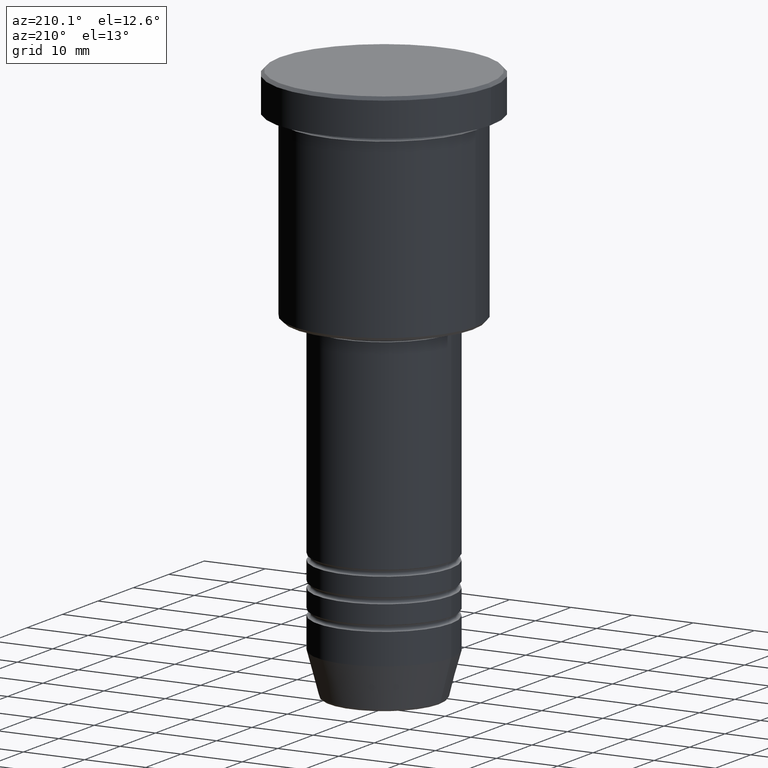
[diagram: clean part render]
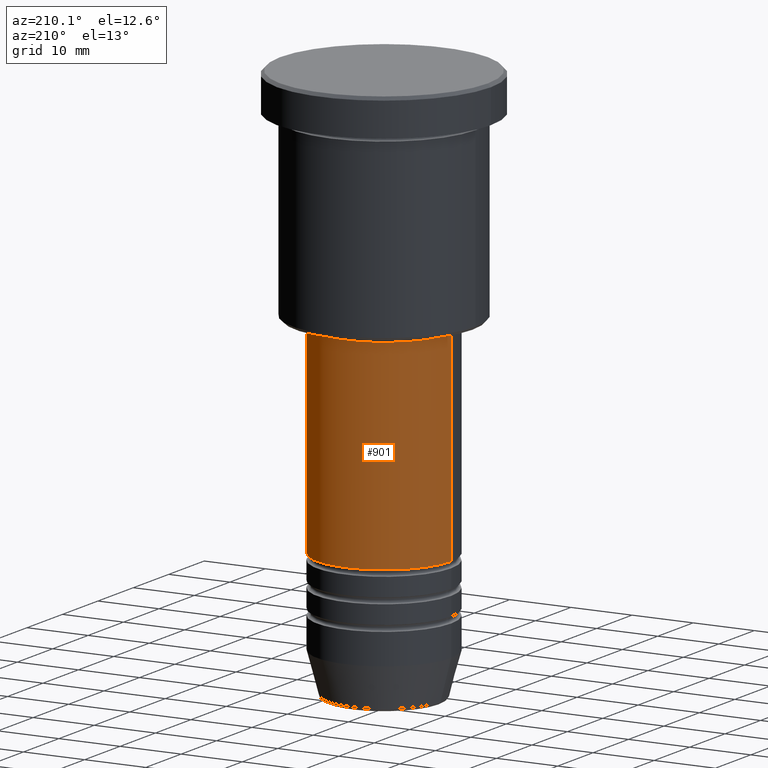
[diagram: same view with one face highlighted and labeled with its STEP entity id]
A machine part, auxiliary view. The second image highlights one B-rep face of the part: STEP entity #901.
In plain terms, the highlighted cylindrical surface (partial cylindrical patch) has radius 11 mm, axis along (-0, -0, 1).
Its self-contained STEP definition (entity closure, byte-faithful):
#2 = CYLINDRICAL_SURFACE ( 'NONE', #328, 11.00000000000000000 ) ;
#18 = DIRECTION ( 'NONE',  ( -0.000000000000000000, -0.000000000000000000, 1.000000000000000000 ) ) ;
#33 = EDGE_CURVE ( 'NONE', #864, #902, #716, .T. ) ;
#69 = EDGE_LOOP ( 'NONE', ( #1068, #868, #717, #920 ) ) ;
#93 = CIRCLE ( 'NONE', #1009, 11.00000000000000000 ) ;
#108 = CARTESIAN_POINT ( 'NONE',  ( 11.00000000000000000, 0.000000000000000000, -37.00000000000000000 ) ) ;
#159 = DIRECTION ( 'NONE',  ( -0.000000000000000000, -0.000000000000000000, 1.000000000000000000 ) ) ;
#192 = EDGE_CURVE ( 'NONE', #993, #902, #93, .T. ) ;
#328 = AXIS2_PLACEMENT_3D ( 'NONE', #432, #538, #795 ) ;
#432 = CARTESIAN_POINT ( 'NONE',  ( 0.000000000000000000, 0.000000000000000000, 0.000000000000000000 ) ) ;
#473 = LINE ( 'NONE', #842, #995 ) ;
#483 = DIRECTION ( 'NONE',  ( -0.000000000000000000, -0.000000000000000000, 1.000000000000000000 ) ) ;
#538 = DIRECTION ( 'NONE',  ( -0.000000000000000000, -0.000000000000000000, 1.000000000000000000 ) ) ;
#568 = EDGE_CURVE ( 'NONE', #702, #864, #975, .T. ) ;
#638 = CARTESIAN_POINT ( 'NONE',  ( -11.00000000000000000, 1.347111479062088405E-15, -69.99999999999988631 ) ) ;
#662 = DIRECTION ( 'NONE',  ( 1.000000000000000000, 0.000000000000000000, 0.000000000000000000 ) ) ;
#702 = VERTEX_POINT ( 'NONE', #1045 ) ;
#716 = LINE ( 'NONE', #1173, #1052 ) ;
#717 = ORIENTED_EDGE ( 'NONE', *, *, #192, .F. ) ;
#795 = DIRECTION ( 'NONE',  ( 1.000000000000000000, 0.000000000000000000, 0.000000000000000000 ) ) ;
#815 = FACE_OUTER_BOUND ( 'NONE', #69, .T. ) ;
#816 = AXIS2_PLACEMENT_3D ( 'NONE', #1019, #483, #662 ) ;
#830 = DIRECTION ( 'NONE',  ( 1.000000000000000000, 0.000000000000000000, 0.000000000000000000 ) ) ;
#842 = CARTESIAN_POINT ( 'NONE',  ( 11.00000000000000000, 0.000000000000000000, 0.000000000000000000 ) ) ;
#864 = VERTEX_POINT ( 'NONE', #638 ) ;
#868 = ORIENTED_EDGE ( 'NONE', *, *, #33, .T. ) ;
#901 = ADVANCED_FACE ( 'NONE', ( #815 ), #2, .T. ) ;
#902 = VERTEX_POINT ( 'NONE', #1164 ) ;
#920 = ORIENTED_EDGE ( 'NONE', *, *, #1000, .F. ) ;
#975 = CIRCLE ( 'NONE', #816, 11.00000000000000000 ) ;
#993 = VERTEX_POINT ( 'NONE', #108 ) ;
#995 = VECTOR ( 'NONE', #1037, 1000.000000000000000 ) ;
#1000 = EDGE_CURVE ( 'NONE', #702, #993, #473, .T. ) ;
#1005 = CARTESIAN_POINT ( 'NONE',  ( 0.000000000000000000, 0.000000000000000000, -37.00000000000000000 ) ) ;
#1009 = AXIS2_PLACEMENT_3D ( 'NONE', #1005, #18, #830 ) ;
#1019 = CARTESIAN_POINT ( 'NONE',  ( 0.000000000000000000, 0.000000000000000000, -69.99999999999988631 ) ) ;
#1037 = DIRECTION ( 'NONE',  ( -0.000000000000000000, -0.000000000000000000, 1.000000000000000000 ) ) ;
#1045 = CARTESIAN_POINT ( 'NONE',  ( 11.00000000000000000, 0.000000000000000000, -69.99999999999988631 ) ) ;
#1052 = VECTOR ( 'NONE', #159, 1000.000000000000000 ) ;
#1068 = ORIENTED_EDGE ( 'NONE', *, *, #568, .T. ) ;
#1164 = CARTESIAN_POINT ( 'NONE',  ( -11.00000000000000000, 1.347111479062088405E-15, -37.00000000000000000 ) ) ;
#1173 = CARTESIAN_POINT ( 'NONE',  ( -11.00000000000000000, 1.347111479062088405E-15, 0.000000000000000000 ) ) ;